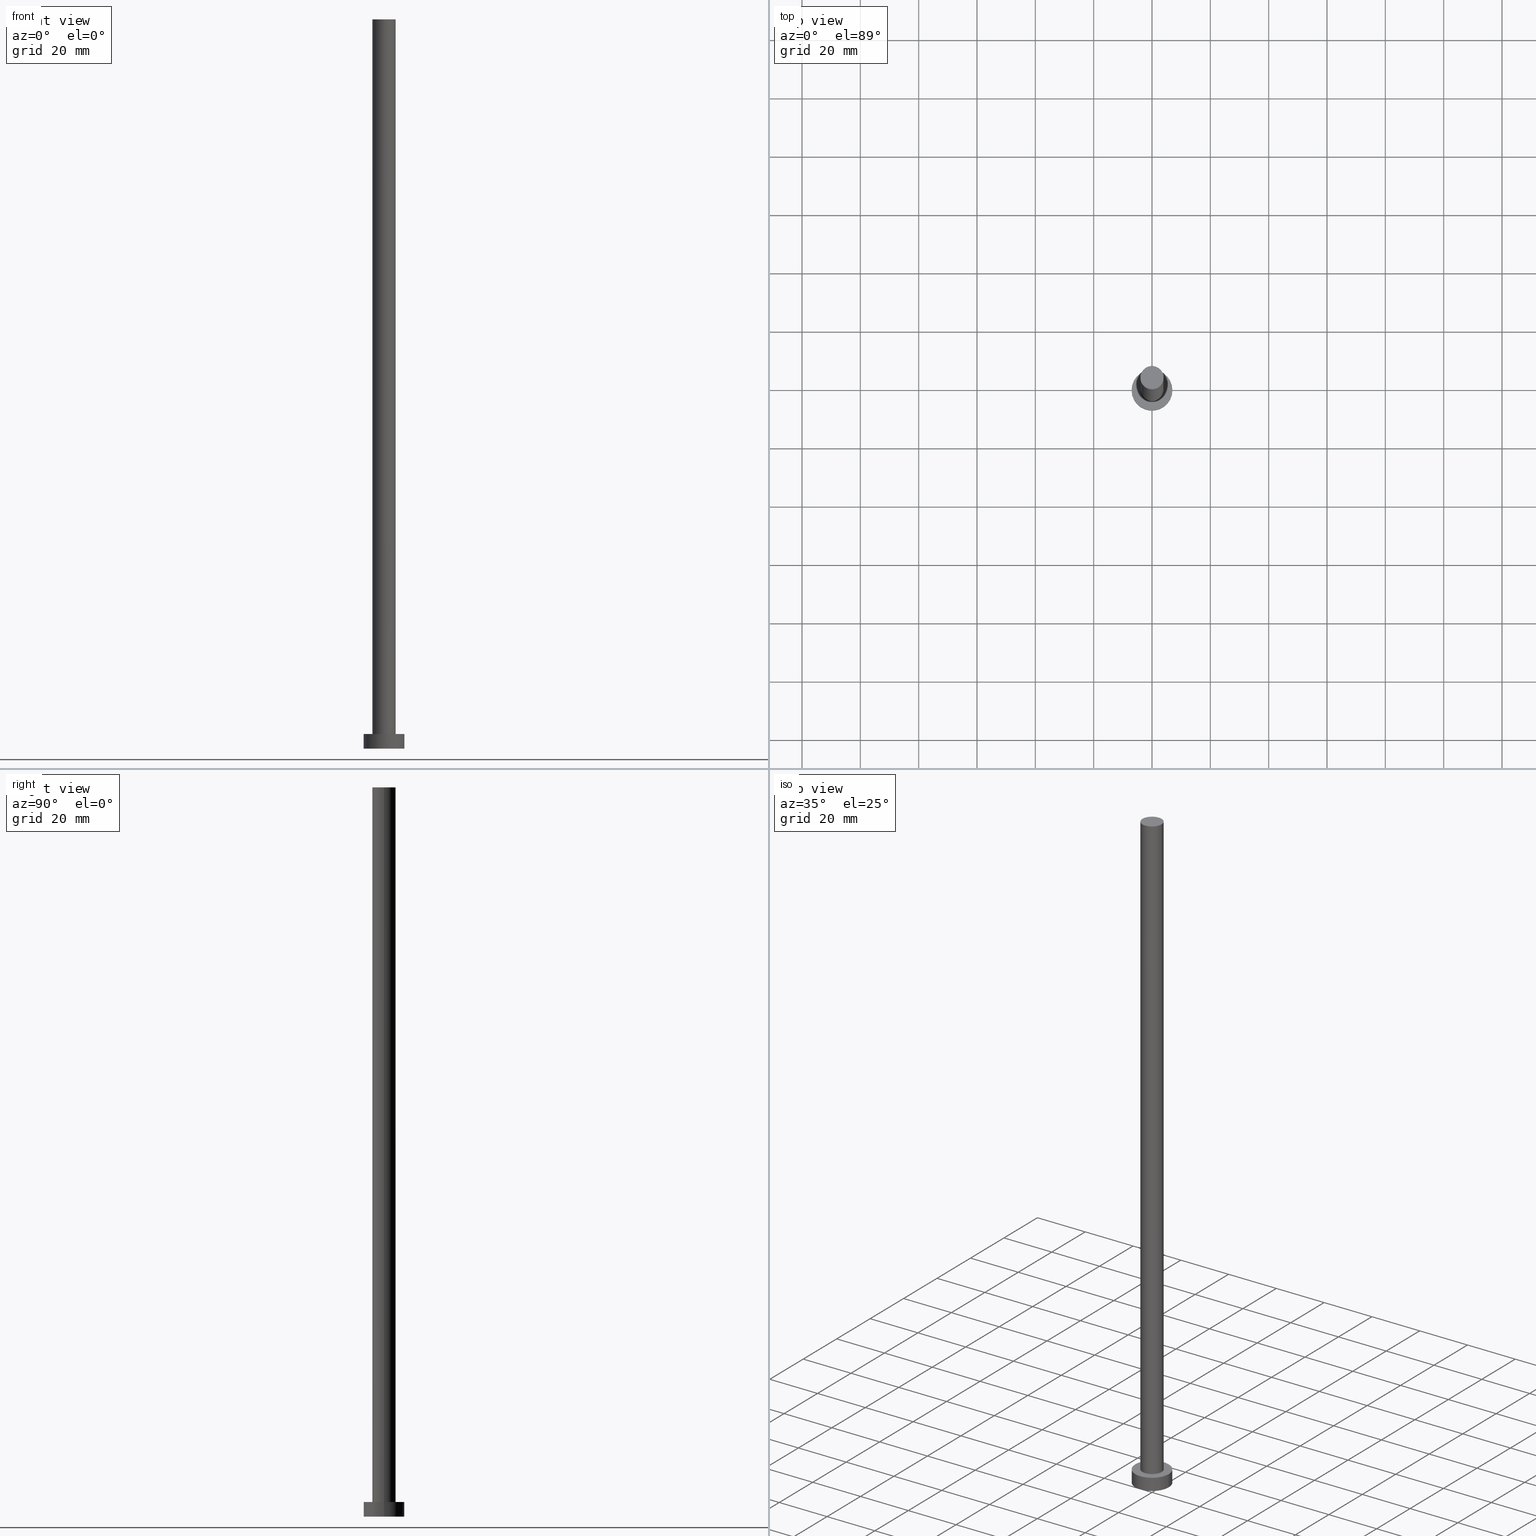
[diagram: canonical four-view strip — front | top / right | iso, engineering-drawing reading convention]
A machine part, canonical four-view strip (front | top / right | iso — engineering-drawing reading convention). The complete STEP part file that produces these views, byte-faithful:
ISO-10303-21;
HEADER;
FILE_DESCRIPTION (( 'STEP AP203' ),
    '1' );
FILE_NAME ('fd11.STEP',
    '2023-02-13T11:44:43',
    ( '' ),
    ( '' ),
    'SwSTEP 2.0',
    'SolidWorks 2019',
    '' );
FILE_SCHEMA (( 'CONFIG_CONTROL_DESIGN' ));
ENDSEC;

DATA;
#1 = DATE_AND_TIME ( #174, #11 ) ;
#2 = CARTESIAN_POINT ( 'NONE',  ( 0.000000000000000000, 0.000000000000000000, 250.0000000000000000 ) ) ;
#3 = CIRCLE ( 'NONE', #243, 4.000000000000000000 ) ;
#4 = ORIENTED_EDGE ( 'NONE', *, *, #58, .T. ) ;
#5 = DIRECTION ( 'NONE',  ( -1.000000000000000000, 0.000000000000000000, 0.000000000000000000 ) ) ;
#6 = CARTESIAN_POINT ( 'NONE',  ( 0.000000000000000000, 0.000000000000000000, 250.0000000000000000 ) ) ;
#7 = ADVANCED_FACE ( 'NONE', ( #21 ), #109, .T. ) ;
#8 = VERTEX_POINT ( 'NONE', #160 ) ;
#9 = DESIGN_CONTEXT ( 'detailed design', #162, 'design' ) ;
#10 = DIRECTION ( 'NONE',  ( -0.000000000000000000, -0.000000000000000000, -1.000000000000000000 ) ) ;
#11 = LOCAL_TIME ( 12, 44, 43.00000000000000000, #80 ) ;
#12 = ORIENTED_EDGE ( 'NONE', *, *, #42, .F. ) ;
#13 = PERSON_AND_ORGANIZATION_ROLE ( 'creator' ) ;
#14 = DATE_TIME_ROLE ( 'creation_date' ) ;
#15 = CARTESIAN_POINT ( 'NONE',  ( 0.000000000000000000, 0.000000000000000000, 5.000000000000000000 ) ) ;
#16 = PERSON ( 'NEUR�EN�', 'NEUR�EN�', 'NEUR�EN�', ('NEUR�EN�'), ('NEUR�EN�'), ('NEUR�EN�') ) ;
#17 = CC_DESIGN_PERSON_AND_ORGANIZATION_ASSIGNMENT ( #211, #166, ( #137 ) ) ;
#18 = CC_DESIGN_PERSON_AND_ORGANIZATION_ASSIGNMENT ( #72, #232, ( #116 ) ) ;
#19 = CIRCLE ( 'NONE', #39, 4.000000000000000000 ) ;
#20 = APPROVAL_ROLE ( '' ) ;
#21 = FACE_OUTER_BOUND ( 'NONE', #159, .T. ) ;
#22 = FACE_OUTER_BOUND ( 'NONE', #175, .T. ) ;
#23 = FACE_OUTER_BOUND ( 'NONE', #59, .T. ) ;
#24 = ORIENTED_EDGE ( 'NONE', *, *, #138, .T. ) ;
#25 = EDGE_CURVE ( 'NONE', #57, #112, #177, .T. ) ;
#26 = CARTESIAN_POINT ( 'NONE',  ( 0.000000000000000000, 0.000000000000000000, 0.000000000000000000 ) ) ;
#27 = DIRECTION ( 'NONE',  ( -0.000000000000000000, -0.000000000000000000, -1.000000000000000000 ) ) ;
#28 = ORIENTED_EDGE ( 'NONE', *, *, #84, .F. ) ;
#29 = LOCAL_TIME ( 12, 44, 43.00000000000000000, #168 ) ;
#30 = PRODUCT_DEFINITION ( 'NEZN�M�', '', #116, #9 ) ;
#31 = PERSON_AND_ORGANIZATION ( #16, #147 ) ;
#32 = DIRECTION ( 'NONE',  ( -0.000000000000000000, -0.000000000000000000, -1.000000000000000000 ) ) ;
#33 = LINE ( 'NONE', #71, #210 ) ;
#34 = CARTESIAN_POINT ( 'NONE',  ( -4.000000000000000000, 0.000000000000000000, 5.000000000000000000 ) ) ;
#35 = CC_DESIGN_APPROVAL ( #189, ( #116 ) ) ;
#36 = DIRECTION ( 'NONE',  ( 0.000000000000000000, 0.000000000000000000, 1.000000000000000000 ) ) ;
#37 = APPROVAL_PERSON_ORGANIZATION ( #216, #230, #20 ) ;
#38 = ADVANCED_FACE ( 'NONE', ( #22 ), #239, .F. ) ;
#39 = AXIS2_PLACEMENT_3D ( 'NONE', #125, #236, #142 ) ;
#40 = PERSON_AND_ORGANIZATION ( #16, #147 ) ;
#41 = PERSON_AND_ORGANIZATION ( #16, #147 ) ;
#42 = EDGE_CURVE ( 'NONE', #106, #179, #50, .T. ) ;
#43 = ORIENTED_EDGE ( 'NONE', *, *, #42, .T. ) ;
#44 = DIRECTION ( 'NONE',  ( 1.000000000000000000, 0.000000000000000000, 0.000000000000000000 ) ) ;
#45 = ORIENTED_EDGE ( 'NONE', *, *, #79, .F. ) ;
#46 = DIRECTION ( 'NONE',  ( -1.000000000000000000, 0.000000000000000000, 0.000000000000000000 ) ) ;
#47 = ORIENTED_EDGE ( 'NONE', *, *, #25, .T. ) ;
#48 = EDGE_CURVE ( 'NONE', #8, #112, #244, .T. ) ;
#49 = DIRECTION ( 'NONE',  ( 0.000000000000000000, 0.000000000000000000, 1.000000000000000000 ) ) ;
#50 = CIRCLE ( 'NONE', #172, 7.000000000000000000 ) ;
#51 = CARTESIAN_POINT ( 'NONE',  ( 0.000000000000000000, 0.000000000000000000, 5.000000000000000000 ) ) ;
#52 = FACE_OUTER_BOUND ( 'NONE', #215, .T. ) ;
#53 = DATE_AND_TIME ( #212, #182 ) ;
#54 = PERSON_AND_ORGANIZATION ( #16, #147 ) ;
#55 =( NAMED_UNIT ( * ) SI_UNIT ( $, .STERADIAN. ) SOLID_ANGLE_UNIT ( ) );
#56 = APPLICATION_PROTOCOL_DEFINITION ( 'international standard', 'config_control_design', 1994, #153 ) ;
#57 = VERTEX_POINT ( 'NONE', #67 ) ;
#58 = EDGE_CURVE ( 'NONE', #112, #57, #3, .T. ) ;
#59 = EDGE_LOOP ( 'NONE', ( #110, #45, #87, #4 ) ) ;
#60 = AXIS2_PLACEMENT_3D ( 'NONE', #163, #132, #73 ) ;
#61 = VERTEX_POINT ( 'NONE', #229 ) ;
#62 = ADVANCED_FACE ( 'NONE', ( #227 ), #200, .T. ) ;
#63 = CARTESIAN_POINT ( 'NONE',  ( 0.000000000000000000, 0.000000000000000000, 0.000000000000000000 ) ) ;
#64 = CC_DESIGN_APPROVAL ( #230, ( #30 ) ) ;
#65 = CARTESIAN_POINT ( 'NONE',  ( -4.000000000000000000, 0.000000000000000000, 250.0000000000000000 ) ) ;
#66 = CARTESIAN_POINT ( 'NONE',  ( 7.000000000000000000, 8.572527594031473190E-16, 5.000000000000000000 ) ) ;
#67 = CARTESIAN_POINT ( 'NONE',  ( 4.000000000000000000, 4.898587196589412829E-16, 5.000000000000000000 ) ) ;
#68 = LINE ( 'NONE', #66, #119 ) ;
#69 = AXIS2_PLACEMENT_3D ( 'NONE', #2, #81, #46 ) ;
#70 = CARTESIAN_POINT ( 'NONE',  ( -7.000000000000000000, 0.000000000000000000, 5.000000000000000000 ) ) ;
#71 = CARTESIAN_POINT ( 'NONE',  ( 4.000000000000000000, 4.898587196589412829E-16, 250.0000000000000000 ) ) ;
#72 = PERSON_AND_ORGANIZATION ( #16, #147 ) ;
#73 = DIRECTION ( 'NONE',  ( 1.000000000000000000, 0.000000000000000000, 0.000000000000000000 ) ) ;
#74 = EDGE_CURVE ( 'NONE', #61, #57, #33, .T. ) ;
#75 = APPROVAL_ROLE ( '' ) ;
#76 = ADVANCED_FACE ( 'NONE', ( #52 ), #135, .T. ) ;
#77 = DATE_AND_TIME ( #118, #29 ) ;
#78 = CIRCLE ( 'NONE', #144, 4.000000000000000000 ) ;
#79 = EDGE_CURVE ( 'NONE', #8, #61, #19, .T. ) ;
#80 = COORDINATED_UNIVERSAL_TIME_OFFSET ( 1, 0, .AHEAD. ) ;
#81 = DIRECTION ( 'NONE',  ( -0.000000000000000000, -0.000000000000000000, -1.000000000000000000 ) ) ;
#82 = AXIS2_PLACEMENT_3D ( 'NONE', #94, #32, #152 ) ;
#83 = AXIS2_PLACEMENT_3D ( 'NONE', #204, #36, #157 ) ;
#84 = EDGE_CURVE ( 'NONE', #61, #8, #78, .T. ) ;
#85 = CARTESIAN_POINT ( 'NONE',  ( 0.000000000000000000, 0.000000000000000000, 250.0000000000000000 ) ) ;
#86 = CARTESIAN_POINT ( 'NONE',  ( 0.000000000000000000, 0.000000000000000000, 0.000000000000000000 ) ) ;
#87 = ORIENTED_EDGE ( 'NONE', *, *, #48, .T. ) ;
#88 = DIRECTION ( 'NONE',  ( 1.000000000000000000, 0.000000000000000000, 0.000000000000000000 ) ) ;
#89 = AXIS2_PLACEMENT_3D ( 'NONE', #51, #92, #203 ) ;
#90 = AXIS2_PLACEMENT_3D ( 'NONE', #247, #249, #134 ) ;
#91 = APPROVAL_ROLE ( '' ) ;
#92 = DIRECTION ( 'NONE',  ( 0.000000000000000000, 0.000000000000000000, 1.000000000000000000 ) ) ;
#93 = CALENDAR_DATE ( 2023, 13, 2 ) ;
#94 = CARTESIAN_POINT ( 'NONE',  ( 0.000000000000000000, 0.000000000000000000, 5.000000000000000000 ) ) ;
#95 = CIRCLE ( 'NONE', #60, 7.000000000000000000 ) ;
#96 = CARTESIAN_POINT ( 'NONE',  ( 0.000000000000000000, 0.000000000000000000, 5.000000000000000000 ) ) ;
#97 = ADVANCED_FACE ( 'NONE', ( #23 ), #194, .T. ) ;
#98 = PERSON_AND_ORGANIZATION_ROLE ( 'design_supplier' ) ;
#99 = AXIS2_PLACEMENT_3D ( 'NONE', #96, #197, #148 ) ;
#100 = EDGE_LOOP ( 'NONE', ( #170, #217, #24, #196 ) ) ;
#101 = PRODUCT_DEFINITION_SHAPE ( 'NONE', 'NONE',  #30 ) ;
#102 = APPROVAL ( #233, 'NEUR�EN�' ) ;
#103 = AXIS2_PLACEMENT_3D ( 'NONE', #86, #176, #214 ) ;
#104 = PERSON_AND_ORGANIZATION_ROLE ( 'design_owner' ) ;
#105 = ORIENTED_EDGE ( 'NONE', *, *, #123, .F. ) ;
#106 = VERTEX_POINT ( 'NONE', #184 ) ;
#107 = DIRECTION ( 'NONE',  ( 1.000000000000000000, 0.000000000000000000, -0.000000000000000000 ) ) ;
#108 = DIRECTION ( 'NONE',  ( -0.000000000000000000, -0.000000000000000000, -1.000000000000000000 ) ) ;
#109 = CYLINDRICAL_SURFACE ( 'NONE', #69, 4.000000000000000000 ) ;
#110 = ORIENTED_EDGE ( 'NONE', *, *, #74, .F. ) ;
#111 = CARTESIAN_POINT ( 'NONE',  ( 7.000000000000000000, 8.572527594031473190E-16, 0.000000000000000000 ) ) ;
#112 = VERTEX_POINT ( 'NONE', #34 ) ;
#113 = COORDINATED_UNIVERSAL_TIME_OFFSET ( 1, 0, .AHEAD. ) ;
#114 = PRODUCT ( 'fd11', 'fd11', '', ( #220 ) ) ;
#115 = DIRECTION ( 'NONE',  ( 1.000000000000000000, 0.000000000000000000, 0.000000000000000000 ) ) ;
#116 = PRODUCT_DEFINITION_FORMATION_WITH_SPECIFIED_SOURCE ( 'LIBOVOLN�', '', #114, .NOT_KNOWN. ) ;
#117 = ADVANCED_FACE ( 'NONE', ( #188, #246 ), #202, .T. ) ;
#118 = CALENDAR_DATE ( 2023, 13, 2 ) ;
#119 = VECTOR ( 'NONE', #10, 1000.000000000000000 ) ;
#120 = CC_DESIGN_PERSON_AND_ORGANIZATION_ASSIGNMENT ( #54, #98, ( #116 ) ) ;
#121 = ORIENTED_EDGE ( 'NONE', *, *, #84, .T. ) ;
#122 = APPROVAL_STATUS ( 'not_yet_approved' ) ;
#123 = EDGE_CURVE ( 'NONE', #219, #156, #140, .T. ) ;
#124 = ORIENTED_EDGE ( 'NONE', *, *, #48, .F. ) ;
#125 = CARTESIAN_POINT ( 'NONE',  ( 0.000000000000000000, 0.000000000000000000, 250.0000000000000000 ) ) ;
#126 = DIRECTION ( 'NONE',  ( 0.000000000000000000, 0.000000000000000000, 1.000000000000000000 ) ) ;
#127 = DIRECTION ( 'NONE',  ( 0.000000000000000000, 0.000000000000000000, 1.000000000000000000 ) ) ;
#128 = CLOSED_SHELL ( 'NONE', ( #7, #248, #62, #117, #38, #97, #76 ) ) ;
#129 = DIRECTION ( 'NONE',  ( 1.000000000000000000, 0.000000000000000000, 0.000000000000000000 ) ) ;
#130 = EDGE_CURVE ( 'NONE', #219, #106, #251, .T. ) ;
#131 = ORIENTED_EDGE ( 'NONE', *, *, #25, .F. ) ;
#132 = DIRECTION ( 'NONE',  ( 0.000000000000000000, 0.000000000000000000, 1.000000000000000000 ) ) ;
#133 = DIRECTION ( 'NONE',  ( 0.000000000000000000, 0.000000000000000000, 1.000000000000000000 ) ) ;
#134 = DIRECTION ( 'NONE',  ( -1.000000000000000000, 0.000000000000000000, 0.000000000000000000 ) ) ;
#135 = PLANE ( 'NONE',  #83 ) ;
#136 = APPROVAL_DATE_TIME ( #53, #102 ) ;
#137 = SECURITY_CLASSIFICATION ( '', '', #139 ) ;
#138 = EDGE_CURVE ( 'NONE', #179, #106, #95, .T. ) ;
#139 = SECURITY_CLASSIFICATION_LEVEL ( 'unclassified' ) ;
#140 = CIRCLE ( 'NONE', #231, 7.000000000000000000 ) ;
#141 = ORIENTED_EDGE ( 'NONE', *, *, #130, .T. ) ;
#142 = DIRECTION ( 'NONE',  ( 1.000000000000000000, 0.000000000000000000, 0.000000000000000000 ) ) ;
#143 = EDGE_LOOP ( 'NONE', ( #192, #105, #141, #43 ) ) ;
#144 = AXIS2_PLACEMENT_3D ( 'NONE', #6, #218, #44 ) ;
#145 = DIRECTION ( 'NONE',  ( -0.000000000000000000, -0.000000000000000000, -1.000000000000000000 ) ) ;
#146 = DATE_AND_TIME ( #93, #221 ) ;
#147 = ORGANIZATION ( 'NEUR�EN�', 'NEUR�EN�', '' ) ;
#148 = DIRECTION ( 'NONE',  ( 1.000000000000000000, 0.000000000000000000, 0.000000000000000000 ) ) ;
#149 = CARTESIAN_POINT ( 'NONE',  ( 7.000000000000000000, 8.572527594031473190E-16, 5.000000000000000000 ) ) ;
#150 = DIRECTION ( 'NONE',  ( -0.000000000000000000, -0.000000000000000000, -1.000000000000000000 ) ) ;
#151 = COORDINATED_UNIVERSAL_TIME_OFFSET ( 1, 0, .AHEAD. ) ;
#152 = DIRECTION ( 'NONE',  ( -1.000000000000000000, 0.000000000000000000, 0.000000000000000000 ) ) ;
#153 = APPLICATION_CONTEXT ( 'configuration controlled 3d designs of mechanical parts and assemblies' ) ;
#154 = ADVANCED_BREP_SHAPE_REPRESENTATION ( 'fd11', ( #186, #103 ), #226 ) ;
#155 = EDGE_CURVE ( 'NONE', #156, #179, #68, .T. ) ;
#156 = VERTEX_POINT ( 'NONE', #149 ) ;
#157 = DIRECTION ( 'NONE',  ( 1.000000000000000000, 0.000000000000000000, -0.000000000000000000 ) ) ;
#158 = CARTESIAN_POINT ( 'NONE',  ( 0.000000000000000000, 0.000000000000000000, 5.000000000000000000 ) ) ;
#159 = EDGE_LOOP ( 'NONE', ( #28, #235, #47, #124 ) ) ;
#160 = CARTESIAN_POINT ( 'NONE',  ( -4.000000000000000000, 0.000000000000000000, 250.0000000000000000 ) ) ;
#161 = CALENDAR_DATE ( 2023, 13, 2 ) ;
#162 = APPLICATION_CONTEXT ( 'configuration controlled 3d designs of mechanical parts and assemblies' ) ;
#163 = CARTESIAN_POINT ( 'NONE',  ( 0.000000000000000000, 0.000000000000000000, 0.000000000000000000 ) ) ;
#164 = EDGE_CURVE ( 'NONE', #156, #219, #171, .T. ) ;
#165 = DIRECTION ( 'NONE',  ( 1.000000000000000000, 0.000000000000000000, 0.000000000000000000 ) ) ;
#166 = PERSON_AND_ORGANIZATION_ROLE ( 'classification_officer' ) ;
#167 =( LENGTH_UNIT ( ) NAMED_UNIT ( * ) SI_UNIT ( .MILLI., .METRE. ) );
#168 = COORDINATED_UNIVERSAL_TIME_OFFSET ( 1, 0, .AHEAD. ) ;
#169 = AXIS2_PLACEMENT_3D ( 'NONE', #63, #126, #107 ) ;
#170 = ORIENTED_EDGE ( 'NONE', *, *, #164, .F. ) ;
#171 = CIRCLE ( 'NONE', #99, 7.000000000000000000 ) ;
#172 = AXIS2_PLACEMENT_3D ( 'NONE', #26, #127, #88 ) ;
#173 = APPLICATION_PROTOCOL_DEFINITION ( 'international standard', 'config_control_design', 1994, #162 ) ;
#174 = CALENDAR_DATE ( 2023, 13, 2 ) ;
#175 = EDGE_LOOP ( 'NONE', ( #12, #193 ) ) ;
#176 = DIRECTION ( 'NONE',  ( 0.000000000000000000, 0.000000000000000000, 1.000000000000000000 ) ) ;
#177 = CIRCLE ( 'NONE', #191, 4.000000000000000000 ) ;
#178 = PRODUCT_RELATED_PRODUCT_CATEGORY ( 'detail', '', ( #114 ) ) ;
#179 = VERTEX_POINT ( 'NONE', #111 ) ;
#180 = DIRECTION ( 'NONE',  ( 0.000000000000000000, 0.000000000000000000, 1.000000000000000000 ) ) ;
#181 = PERSON_AND_ORGANIZATION ( #16, #147 ) ;
#182 = LOCAL_TIME ( 12, 44, 43.00000000000000000, #151 ) ;
#183 = APPROVAL_DATE_TIME ( #1, #230 ) ;
#184 = CARTESIAN_POINT ( 'NONE',  ( -7.000000000000000000, 0.000000000000000000, 0.000000000000000000 ) ) ;
#185 = APPROVAL_DATE_TIME ( #245, #189 ) ;
#186 = MANIFOLD_SOLID_BREP ( 'P�idat vysunut�m3', #128 ) ;
#187 = VECTOR ( 'NONE', #145, 1000.000000000000000 ) ;
#188 = FACE_BOUND ( 'NONE', #223, .T. ) ;
#189 = APPROVAL ( #224, 'NEUR�EN�' ) ;
#190 = AXIS2_PLACEMENT_3D ( 'NONE', #85, #108, #5 ) ;
#191 = AXIS2_PLACEMENT_3D ( 'NONE', #158, #180, #129 ) ;
#192 = ORIENTED_EDGE ( 'NONE', *, *, #155, .F. ) ;
#193 = ORIENTED_EDGE ( 'NONE', *, *, #138, .F. ) ;
#194 = CYLINDRICAL_SURFACE ( 'NONE', #190, 4.000000000000000000 ) ;
#195 = ORIENTED_EDGE ( 'NONE', *, *, #164, .T. ) ;
#196 = ORIENTED_EDGE ( 'NONE', *, *, #130, .F. ) ;
#197 = DIRECTION ( 'NONE',  ( 0.000000000000000000, 0.000000000000000000, 1.000000000000000000 ) ) ;
#198 = ORIENTED_EDGE ( 'NONE', *, *, #79, .T. ) ;
#199 = CARTESIAN_POINT ( 'NONE',  ( -7.000000000000000000, 0.000000000000000000, 5.000000000000000000 ) ) ;
#200 = CYLINDRICAL_SURFACE ( 'NONE', #90, 7.000000000000000000 ) ;
#201 = COORDINATED_UNIVERSAL_TIME_OFFSET ( 1, 0, .AHEAD. ) ;
#202 = PLANE ( 'NONE',  #89 ) ;
#203 = DIRECTION ( 'NONE',  ( 1.000000000000000000, 0.000000000000000000, -0.000000000000000000 ) ) ;
#204 = CARTESIAN_POINT ( 'NONE',  ( 0.000000000000000000, 0.000000000000000000, 250.0000000000000000 ) ) ;
#205 = APPROVAL_PERSON_ORGANIZATION ( #31, #189, #91 ) ;
#206 = APPROVAL_PERSON_ORGANIZATION ( #40, #102, #75 ) ;
#207 = SHAPE_DEFINITION_REPRESENTATION ( #101, #154 ) ;
#208 =( NAMED_UNIT ( * ) PLANE_ANGLE_UNIT ( ) SI_UNIT ( $, .RADIAN. ) );
#209 = CARTESIAN_POINT ( 'NONE',  ( 0.000000000000000000, 0.000000000000000000, 5.000000000000000000 ) ) ;
#210 = VECTOR ( 'NONE', #150, 1000.000000000000000 ) ;
#211 = PERSON_AND_ORGANIZATION ( #16, #147 ) ;
#212 = CALENDAR_DATE ( 2023, 13, 2 ) ;
#213 = CC_DESIGN_PERSON_AND_ORGANIZATION_ASSIGNMENT ( #41, #104, ( #114 ) ) ;
#214 = DIRECTION ( 'NONE',  ( 1.000000000000000000, 0.000000000000000000, 0.000000000000000000 ) ) ;
#215 = EDGE_LOOP ( 'NONE', ( #198, #121 ) ) ;
#216 = PERSON_AND_ORGANIZATION ( #16, #147 ) ;
#217 = ORIENTED_EDGE ( 'NONE', *, *, #155, .T. ) ;
#218 = DIRECTION ( 'NONE',  ( 0.000000000000000000, 0.000000000000000000, 1.000000000000000000 ) ) ;
#219 = VERTEX_POINT ( 'NONE', #199 ) ;
#220 = MECHANICAL_CONTEXT ( 'NONE', #153, 'mechanical' ) ;
#221 = LOCAL_TIME ( 12, 44, 43.00000000000000000, #201 ) ;
#222 = CC_DESIGN_APPROVAL ( #102, ( #137 ) ) ;
#223 = EDGE_LOOP ( 'NONE', ( #241, #131 ) ) ;
#224 = APPROVAL_STATUS ( 'not_yet_approved' ) ;
#225 = CC_DESIGN_DATE_AND_TIME_ASSIGNMENT ( #146, #14, ( #30 ) ) ;
#226 =( GEOMETRIC_REPRESENTATION_CONTEXT ( 3 ) GLOBAL_UNCERTAINTY_ASSIGNED_CONTEXT ( ( #242 ) ) GLOBAL_UNIT_ASSIGNED_CONTEXT ( ( #167, #208, #55 ) ) REPRESENTATION_CONTEXT ( 'NONE', 'WORKASPACE' ) );
#227 = FACE_OUTER_BOUND ( 'NONE', #143, .T. ) ;
#228 = FACE_OUTER_BOUND ( 'NONE', #100, .T. ) ;
#229 = CARTESIAN_POINT ( 'NONE',  ( 4.000000000000000000, 4.898587196589412829E-16, 250.0000000000000000 ) ) ;
#230 = APPROVAL ( #122, 'NEUR�EN�' ) ;
#231 = AXIS2_PLACEMENT_3D ( 'NONE', #15, #49, #165 ) ;
#232 = PERSON_AND_ORGANIZATION_ROLE ( 'creator' ) ;
#233 = APPROVAL_STATUS ( 'not_yet_approved' ) ;
#234 = CC_DESIGN_DATE_AND_TIME_ASSIGNMENT ( #77, #253, ( #137 ) ) ;
#235 = ORIENTED_EDGE ( 'NONE', *, *, #74, .T. ) ;
#236 = DIRECTION ( 'NONE',  ( 0.000000000000000000, 0.000000000000000000, 1.000000000000000000 ) ) ;
#237 = ORIENTED_EDGE ( 'NONE', *, *, #123, .T. ) ;
#238 = CC_DESIGN_PERSON_AND_ORGANIZATION_ASSIGNMENT ( #181, #13, ( #30 ) ) ;
#239 = PLANE ( 'NONE',  #169 ) ;
#240 = EDGE_LOOP ( 'NONE', ( #237, #195 ) ) ;
#241 = ORIENTED_EDGE ( 'NONE', *, *, #58, .F. ) ;
#242 = UNCERTAINTY_MEASURE_WITH_UNIT (LENGTH_MEASURE( 1.000000000000000082E-05 ), #167, 'distance_accuracy_value', 'NONE');
#243 = AXIS2_PLACEMENT_3D ( 'NONE', #209, #133, #115 ) ;
#244 = LINE ( 'NONE', #65, #187 ) ;
#245 = DATE_AND_TIME ( #161, #255 ) ;
#246 = FACE_OUTER_BOUND ( 'NONE', #240, .T. ) ;
#247 = CARTESIAN_POINT ( 'NONE',  ( 0.000000000000000000, 0.000000000000000000, 5.000000000000000000 ) ) ;
#248 = ADVANCED_FACE ( 'NONE', ( #228 ), #252, .T. ) ;
#249 = DIRECTION ( 'NONE',  ( -0.000000000000000000, -0.000000000000000000, -1.000000000000000000 ) ) ;
#250 = CC_DESIGN_SECURITY_CLASSIFICATION ( #137, ( #116 ) ) ;
#251 = LINE ( 'NONE', #70, #254 ) ;
#252 = CYLINDRICAL_SURFACE ( 'NONE', #82, 7.000000000000000000 ) ;
#253 = DATE_TIME_ROLE ( 'classification_date' ) ;
#254 = VECTOR ( 'NONE', #27, 1000.000000000000000 ) ;
#255 = LOCAL_TIME ( 12, 44, 43.00000000000000000, #113 ) ;
ENDSEC;
END-ISO-10303-21;
